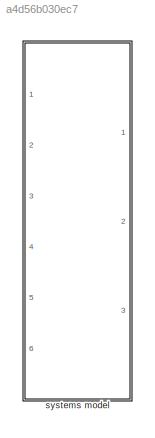
MODEL slx_a4d56b030ec7
KIND model
CONFIG AbsTol = auto
CONFIG EnableMultiTasking = off
CONFIG FixedStep = auto
CONFIG MaxStep = auto
CONFIG MinStep = auto
CONFIG RelTol = 1e-3
CONFIG SampleTimeConstraint = Unconstrained
CONFIG SolverName = VariableStepAuto
CONFIG StartTime = 0.0
CONFIG StopTime = 10
WORKSPACE source: external: MAT-File  (data not in archive)
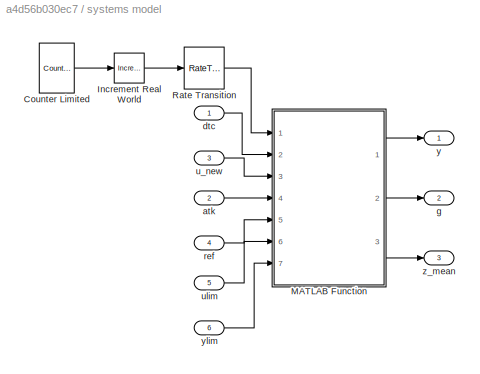
BLOCK [SubSystem] systems model
  Ports = [6, 3]
  RequestExecContextInheritance = off
BLOCK [Reference] systems model/Counter Limited  REF=simulink/Sources/Counter
Limited
  Ports = [0, 1]
  SourceBlock = simulink/Sources/Counter\nLimited
  SourceProductBaseCode = SL
  SourceType = Counter Limited
BLOCK [Reference] systems model/Increment Real World  REF=simulink/Additional Math
& Discrete/Additional Math:
Increment - Decrement/Increment
Real World
  Ports = [1, 1]
  SourceBlock = simulink/Additional Math\n& Discrete/Additional Math:\nIncrement - Decrement/Increment\nReal World
  SourceProductBaseCode = SL
  SourceType = Real World Value Increment
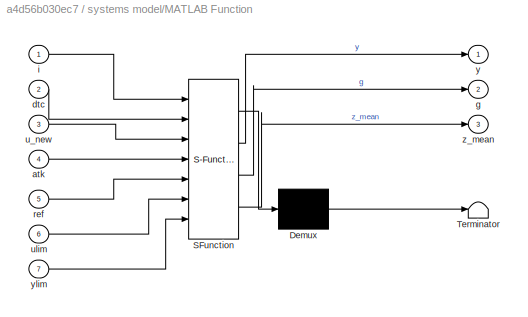
BLOCK [SubSystem] systems model/MATLAB Function
  ErrorFcn = Stateflow.Translate.translate
  PermitHierarchicalResolution = ExplicitOnly
  Ports = [7, 3]
  RequestExecContextInheritance = off
  SFBlockType = MATLAB Function
  TreatAsAtomicUnit = on
BLOCK [Demux] systems model/MATLAB Function/ Demux 
  Outputs = 1
  Ports = [1, 1]
BLOCK [S-Function] systems model/MATLAB Function/ SFunction 
  EnableBusSupport = on
  FunctionName = sf_sfun
  Parameters = s
  PortCounts = [7 4]
  Ports = [7, 4]
  SFcnIsStateOwnerBlock = off
  SFunctionDeploymentMode = off
  Tag = Stateflow S-Function 1
BLOCK [Terminator] systems model/MATLAB Function/ Terminator 
BLOCK [Inport] systems model/MATLAB Function/atk
  Port = 4
BLOCK [Inport] systems model/MATLAB Function/dtc
  Port = 2
BLOCK [Outport] systems model/MATLAB Function/g
  Port = 2
BLOCK [Inport] systems model/MATLAB Function/i
BLOCK [Inport] systems model/MATLAB Function/ref
  Port = 5
BLOCK [Inport] systems model/MATLAB Function/u_new
  Port = 3
BLOCK [Inport] systems model/MATLAB Function/ulim
  Port = 6
BLOCK [Outport] systems model/MATLAB Function/y
BLOCK [Inport] systems model/MATLAB Function/ylim
  Port = 7
BLOCK [Outport] systems model/MATLAB Function/z_mean
  Port = 3
BLOCK [RateTransition] systems model/Rate Transition
BLOCK [Inport] systems model/atk
  Port = 2
BLOCK [Inport] systems model/dtc
BLOCK [Outport] systems model/g
  Port = 2
BLOCK [Inport] systems model/ref
  Port = 4
BLOCK [Inport] systems model/u_new
  Port = 3
BLOCK [Inport] systems model/ulim
  Port = 5
BLOCK [Outport] systems model/y
BLOCK [Inport] systems model/ylim
  Port = 6
BLOCK [Outport] systems model/z_mean
  Port = 3
LINE systems model/Counter Limited:1 -> systems model/Increment Real World:1
LINE systems model/Increment Real World:1 -> systems model/Rate Transition:1
LINE systems model/MATLAB Function:1 -> systems model/y:1
LINE systems model/MATLAB Function:2 -> systems model/g:1
LINE systems model/MATLAB Function:3 -> systems model/z_mean:1
LINE systems model/Rate Transition:1 -> systems model/MATLAB Function:1
LINE systems model/atk:1 -> systems model/MATLAB Function:4
LINE systems model/dtc:1 -> systems model/MATLAB Function:2
LINE systems model/ref:1 -> systems model/MATLAB Function:5
LINE systems model/u_new:1 -> systems model/MATLAB Function:3
LINE systems model/ulim:1 -> systems model/MATLAB Function:6
LINE systems model/ylim:1 -> systems model/MATLAB Function:7
CHART systems model/MATLAB Function states=1 transitions=1
  STATE_LABEL 'eML_blk_kernel()'
  STATE_LABEL 'SCRIPT:\nfunction [y,g,z_mean] = env(i,dtc,u_new,atk,ref,ulim,ylim, s)\n% function [y,g,z_mean]= envSys(atk,dtc,new_u,ref, s)\n%% SYS_ENV Summary of this function goes here\n\n%%%%%%%%%%%%%%%%%%%%%%%%%%%=====FDI Attack=========%%%%%%%%%%%%%%%%%%%%%\n%========================== obtained from code ======================%\n% x1_0=-15.0;\n% x2_0=16.6096079397;\n% fdi_u=[ 35.99313719  71.98627437  58.33575204  ...<+2593ch>'
CHART  states=0 transitions=0
